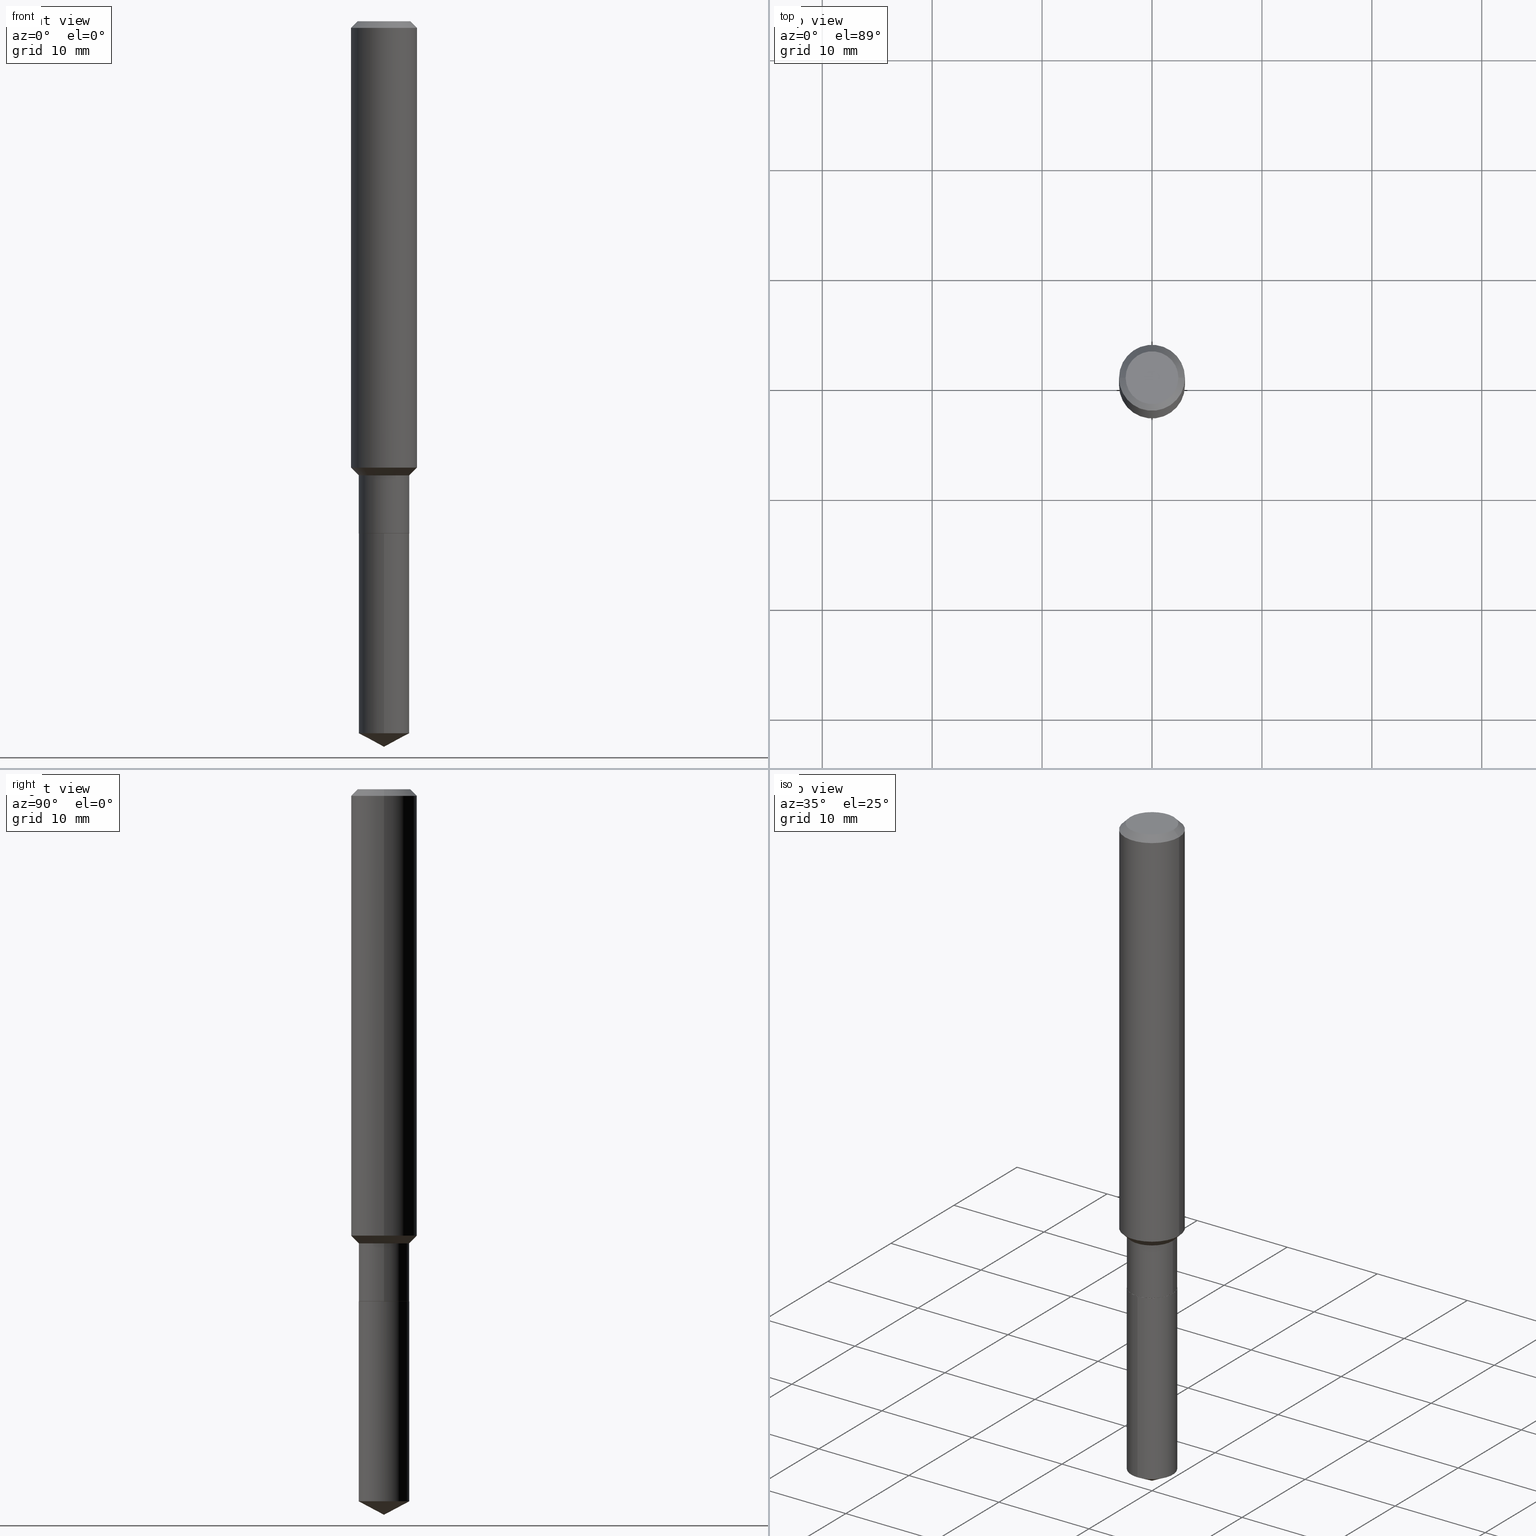
[diagram: canonical four-view strip — front | top / right | iso, engineering-drawing reading convention]
A machine part, canonical four-view strip (front | top / right | iso — engineering-drawing reading convention). The complete STEP part file that produces these views, byte-faithful:
ISO-10303-21;
HEADER;
FILE_DESCRIPTION (( 'STEP AP203' ),
    '1' );
FILE_NAME ('64616.STEP',
    '2024-04-24T18:26:18',
    ( '' ),
    ( '' ),
    'SwSTEP 2.0',
    'SolidWorks 2023',
    '' );
FILE_SCHEMA (( 'CONFIG_CONTROL_DESIGN' ));
ENDSEC;

DATA;
#1 = DIRECTION ( 'NONE',  ( 1.000000000000000000, -6.982962677686267499E-15, 0.000000000000000000 ) ) ;
#2 = DIRECTION ( 'NONE',  ( -2.445542674016749564E-29, 3.491375555903980124E-15, 1.000000000000000000 ) ) ;
#3 = AXIS2_PLACEMENT_3D ( 'NONE', #449, #405, #113 ) ;
#4 = ORIENTED_EDGE ( 'NONE', *, *, #258, .T. ) ;
#5 = AXIS2_PLACEMENT_3D ( 'NONE', #338, #2, #154 ) ;
#6 = LINE ( 'NONE', #160, #416 ) ;
#7 = DIRECTION ( 'NONE',  ( 1.000000000000000000, -6.982962677686267499E-15, 0.000000000000000000 ) ) ;
#8 = DIRECTION ( 'NONE',  ( -6.982962677686266711E-15, -1.000000000000000000, 6.033899489043098888E-15 ) ) ;
#9 = ORIENTED_EDGE ( 'NONE', *, *, #47, .T. ) ;
#10 = ADVANCED_FACE ( 'NONE', ( #106 ), #294, .F. ) ;
#11 = APPROVAL_ROLE ( '' ) ;
#12 = CARTESIAN_POINT ( 'NONE',  ( 4.486457071827251481E-29, -6.405471664241634119E-15, -1.834599999999999786 ) ) ;
#13 = LINE ( 'NONE', #158, #85 ) ;
#14 = AXIS2_PLACEMENT_3D ( 'NONE', #217, #163, #118 ) ;
#15 = CARTESIAN_POINT ( 'NONE',  ( 5.776197320209327532E-31, -8.246878922347559293E-17, -0.02362000000000014088 ) ) ;
#16 = LINE ( 'NONE', #91, #67 ) ;
#17 = EDGE_CURVE ( 'NONE', #442, #349, #34, .T. ) ;
#18 = LINE ( 'NONE', #313, #117 ) ;
#19 = ORIENTED_EDGE ( 'NONE', *, *, #123, .F. ) ;
#20 = ADVANCED_FACE ( 'NONE', ( #259 ), #66, .T. ) ;
#21 = CIRCLE ( 'NONE', #84, 0.09005000000000000504 ) ;
#22 = EDGE_CURVE ( 'NONE', #370, #127, #149, .T. ) ;
#23 = FACE_OUTER_BOUND ( 'NONE', #193, .T. ) ;
#24 = AXIS2_PLACEMENT_3D ( 'NONE', #105, #196, #8 ) ;
#25 = DIRECTION ( 'NONE',  ( -6.982962677686266711E-15, -1.000000000000000000, 3.016949744521549444E-15 ) ) ;
#26 = PRODUCT_RELATED_PRODUCT_CATEGORY ( 'detail', '', ( #171 ) ) ;
#27 = CLOSED_SHELL ( 'NONE', ( #462, #222, #275, #199, #151, #322, #20, #112, #237, #417, #137, #356 ) ) ;
#28 = ORIENTED_EDGE ( 'NONE', *, *, #304, .T. ) ;
#29 = DIRECTION ( 'NONE',  ( 1.000000000000000000, -6.982962677686267499E-15, 4.875432709231658792E-29 ) ) ;
#30 = DIRECTION ( 'NONE',  ( 2.445542674016748723E-29, -3.491375555903980518E-15, -1.000000000000000000 ) ) ;
#31 = PERSON_AND_ORGANIZATION ( #232, #253 ) ;
#32 = DIRECTION ( 'NONE',  ( -2.445468806185136877E-29, 3.491481338843145188E-15, 1.000000000000000000 ) ) ;
#33 = ORIENTED_EDGE ( 'NONE', *, *, #17, .F. ) ;
#34 = LINE ( 'NONE', #188, #76 ) ;
#35 = APPROVAL_PERSON_ORGANIZATION ( #185, #190, #83 ) ;
#36 = ORIENTED_EDGE ( 'NONE', *, *, #247, .F. ) ;
#37 = CARTESIAN_POINT ( 'NONE',  ( 3.977065919498887245E-29, -5.678196101360606544E-15, -1.626299999999999857 ) ) ;
#38 = PERSON_AND_ORGANIZATION_ROLE ( 'creator' ) ;
#39 = VERTEX_POINT ( 'NONE', #143 ) ;
#40 = FACE_OUTER_BOUND ( 'NONE', #191, .T. ) ;
#41 = EDGE_LOOP ( 'NONE', ( #173, #444, #307, #214 ) ) ;
#42 = AXIS2_PLACEMENT_3D ( 'NONE', #323, #30, #429 ) ;
#43 = AXIS2_PLACEMENT_3D ( 'NONE', #365, #490, #29 ) ;
#44 = ORIENTED_EDGE ( 'NONE', *, *, #162, .T. ) ;
#45 = DIRECTION ( 'NONE',  ( -2.445468806185136597E-29, 3.491481338843145583E-15, 1.000000000000000000 ) ) ;
#46 = COORDINATED_UNIVERSAL_TIME_OFFSET ( 5, 0, .BEHIND. ) ;
#47 = EDGE_CURVE ( 'NONE', #231, #72, #441, .T. ) ;
#48 =( LENGTH_UNIT ( ) NAMED_UNIT ( * ) SI_UNIT ( $, .METRE. ) );
#49 = CARTESIAN_POINT ( 'NONE',  ( -0.1180999999999999966, -1.993086318916797028E-15, -0.02362000000000014088 ) ) ;
#50 = CARTESIAN_POINT ( 'NONE',  ( 4.486457071827251481E-29, -6.405471664241634119E-15, -1.834599999999999786 ) ) ;
#51 = APPROVAL ( #341, 'UNSPECIFIED' ) ;
#52 = PERSON_AND_ORGANIZATION ( #232, #253 ) ;
#53 = ORIENTED_EDGE ( 'NONE', *, *, #22, .F. ) ;
#54 = CIRCLE ( 'NONE', #150, 0.09447999999999998066 ) ;
#55 = COORDINATED_UNIVERSAL_TIME_OFFSET ( 5, 0, .BEHIND. ) ;
#56 = DIRECTION ( 'NONE',  ( -2.445542674016749564E-29, 3.491375555903980124E-15, 1.000000000000000000 ) ) ;
#57 = CYLINDRICAL_SURFACE ( 'NONE', #75, 0.09055000000000000548 ) ;
#58 = EDGE_LOOP ( 'NONE', ( #186, #372, #245, #77 ) ) ;
#59 = AXIS2_PLACEMENT_3D ( 'NONE', #478, #353, #315 ) ;
#60 = CARTESIAN_POINT ( 'NONE',  ( 6.603013411620882309E-46, -9.427353171913646324E-32, -2.700101262760083747E-17 ) ) ;
#61 = APPROVAL_DATE_TIME ( #426, #119 ) ;
#62 = EDGE_LOOP ( 'NONE', ( #124, #423, #155, #33 ) ) ;
#63 = LINE ( 'NONE', #99, #152 ) ;
#64 = CARTESIAN_POINT ( 'NONE',  ( 4.486457071827251481E-29, -6.405471664241634119E-15, -1.834599999999999786 ) ) ;
#65 = PRODUCT_DEFINITION_SHAPE ( 'NONE', 'NONE',  #229 ) ;
#66 = CONICAL_SURFACE ( 'NONE', #219, 0.09054999999999999161, 0.7853981633974501664 ) ;
#67 = VECTOR ( 'NONE', #170, 39.37007874015748143 ) ;
#68 = DIRECTION ( 'NONE',  ( -2.445542674016749564E-29, 3.491375555903980124E-15, 1.000000000000000000 ) ) ;
#69 = DIRECTION ( 'NONE',  ( -2.445542674016749564E-29, 3.491375555903980518E-15, 1.000000000000000000 ) ) ;
#70 = DIRECTION ( 'NONE',  ( 1.000000000000000000, -6.982962677686269077E-15, 0.000000000000000000 ) ) ;
#71 = CARTESIAN_POINT ( 'NONE',  ( 0.000000000000000000, 0.000000000000000000, 0.000000000000000000 ) ) ;
#72 = VERTEX_POINT ( 'NONE', #428 ) ;
#73 = VECTOR ( 'NONE', #69, 39.37007874015748143 ) ;
#74 = CARTESIAN_POINT ( 'NONE',  ( 6.354500460829572678E-29, -9.071990244460901999E-15, -2.598399999999999821 ) ) ;
#75 = AXIS2_PLACEMENT_3D ( 'NONE', #317, #284, #296 ) ;
#76 = VECTOR ( 'NONE', #227, 39.37007874015748143 ) ;
#77 = ORIENTED_EDGE ( 'NONE', *, *, #486, .F. ) ;
#78 = ORIENTED_EDGE ( 'NONE', *, *, #116, .T. ) ;
#79 = DIRECTION ( 'NONE',  ( -2.445542674016749564E-29, 3.491375555903980124E-15, 1.000000000000000000 ) ) ;
#80 = VERTEX_POINT ( 'NONE', #324 ) ;
#81 = EDGE_CURVE ( 'NONE', #127, #122, #145, .T. ) ;
#82 = DIRECTION ( 'NONE',  ( -2.445468806185136597E-29, 3.491481338843145583E-15, 1.000000000000000000 ) ) ;
#83 = APPROVAL_ROLE ( '' ) ;
#84 = AXIS2_PLACEMENT_3D ( 'NONE', #50, #45, #148 ) ;
#85 = VECTOR ( 'NONE', #309, 39.37007874015748143 ) ;
#86 = ORIENTED_EDGE ( 'NONE', *, *, #440, .T. ) ;
#87 = DIRECTION ( 'NONE',  ( 1.000000000000000000, -6.982962677686271444E-15, 0.000000000000000000 ) ) ;
#88 = CARTESIAN_POINT ( 'NONE',  ( 3.977065919498887245E-29, -5.678196101360606544E-15, -1.626299999999999857 ) ) ;
#89 = EDGE_LOOP ( 'NONE', ( #241, #303, #78, #269 ) ) ;
#90 = SHAPE_DEFINITION_REPRESENTATION ( #65, #391 ) ;
#91 = CARTESIAN_POINT ( 'NONE',  ( 0.09005000000000000504, -7.034287453367283370E-15, -1.834599999999999786 ) ) ;
#92 = DIRECTION ( 'NONE',  ( -2.445468806185136597E-29, 3.491481338843145583E-15, 1.000000000000000000 ) ) ;
#93 = ORIENTED_EDGE ( 'NONE', *, *, #109, .T. ) ;
#94 = PERSON_AND_ORGANIZATION ( #232, #253 ) ;
#95 = ORIENTED_EDGE ( 'NONE', *, *, #226, .T. ) ;
#96 = CIRCLE ( 'NONE', #43, 0.09447999999999998066 ) ;
#97 = AXIS2_PLACEMENT_3D ( 'NONE', #355, #396, #487 ) ;
#98 = DIRECTION ( 'NONE',  ( 1.000000000000000000, -6.982962677686266711E-15, 0.000000000000000000 ) ) ;
#99 = CARTESIAN_POINT ( 'NONE',  ( 0.09054999999999999161, -6.310503371825098014E-15, -1.626299999999999857 ) ) ;
#100 = ADVANCED_FACE ( 'NONE', ( #23 ), #225, .T. ) ;
#101 = CYLINDRICAL_SURFACE ( 'NONE', #425, 0.1181000000000001077 ) ;
#102 = EDGE_CURVE ( 'NONE', #263, #270, #320, .T. ) ;
#103 = AXIS2_PLACEMENT_3D ( 'NONE', #242, #79, #404 ) ;
#104 = DIRECTION ( 'NONE',  ( -2.445468806185136597E-29, 3.491481338843145583E-15, 1.000000000000000000 ) ) ;
#105 = CARTESIAN_POINT ( 'NONE',  ( 6.236618761805847335E-29, -8.904087537190013897E-15, -2.550253710963053422 ) ) ;
#106 = FACE_OUTER_BOUND ( 'NONE', #466, .T. ) ;
#107 = DIRECTION ( 'NONE',  ( 1.000000000000000000, -6.982962677686269077E-15, 0.000000000000000000 ) ) ;
#108 = ORIENTED_EDGE ( 'NONE', *, *, #176, .T. ) ;
#109 = EDGE_CURVE ( 'NONE', #349, #270, #194, .T. ) ;
#110 = ORIENTED_EDGE ( 'NONE', *, *, #486, .T. ) ;
#111 = CARTESIAN_POINT ( 'NONE',  ( 4.486457071827251481E-29, -6.405471664241634119E-15, -1.834599999999999786 ) ) ;
#112 = ADVANCED_FACE ( 'NONE', ( #255 ), #101, .T. ) ;
#113 = DIRECTION ( 'NONE',  ( 1.000000000000000000, -6.982962677686266711E-15, 0.000000000000000000 ) ) ;
#114 = ORIENTED_EDGE ( 'NONE', *, *, #304, .F. ) ;
#115 = DIRECTION ( 'NONE',  ( -2.445468806185136597E-29, 3.491481338843145583E-15, 1.000000000000000000 ) ) ;
#116 = EDGE_CURVE ( 'NONE', #401, #263, #63, .T. ) ;
#117 = VECTOR ( 'NONE', #422, 39.37007874015748143 ) ;
#118 = DIRECTION ( 'NONE',  ( 1.000000000000000000, -6.982962677686267499E-15, 0.000000000000000000 ) ) ;
#119 = APPROVAL ( #339, 'UNSPECIFIED' ) ;
#120 = VERTEX_POINT ( 'NONE', #290 ) ;
#121 = DATE_TIME_ROLE ( 'creation_date' ) ;
#122 = VERTEX_POINT ( 'NONE', #481 ) ;
#123 = EDGE_CURVE ( 'NONE', #120, #72, #347, .T. ) ;
#124 = ORIENTED_EDGE ( 'NONE', *, *, #327, .F. ) ;
#125 = APPROVAL_STATUS ( 'not_yet_approved' ) ;
#126 = DIRECTION ( 'NONE',  ( -6.165590087286847862E-15, -0.8829475928589283207, 0.4694715627858883078 ) ) ;
#127 = VERTEX_POINT ( 'NONE', #138 ) ;
#128 = CC_DESIGN_PERSON_AND_ORGANIZATION_ASSIGNMENT ( #135, #433, ( #142 ) ) ;
#129 = AXIS2_PLACEMENT_3D ( 'NONE', #479, #177, #98 ) ;
#130 = DIRECTION ( 'NONE',  ( -1.000000000000000000, 6.982962677686266711E-15, 0.000000000000000000 ) ) ;
#131 = AXIS2_PLACEMENT_3D ( 'NONE', #351, #172, #358 ) ;
#132 = VECTOR ( 'NONE', #412, 39.37007874015748143 ) ;
#133 = AXIS2_PLACEMENT_3D ( 'NONE', #361, #183, #359 ) ;
#134 = ORIENTED_EDGE ( 'NONE', *, *, #102, .T. ) ;
#135 = PERSON_AND_ORGANIZATION ( #232, #253 ) ;
#136 = DIRECTION ( 'NONE',  ( -2.445468806185136597E-29, 3.491481338843145583E-15, 1.000000000000000000 ) ) ;
#137 = ADVANCED_FACE ( 'NONE', ( #390 ), #180, .F. ) ;
#138 = CARTESIAN_POINT ( 'NONE',  ( -6.323072704644292482E-16, -0.09055000000000891502, -2.550253710963052978 ) ) ;
#139 = PERSON_AND_ORGANIZATION_ROLE ( 'design_owner' ) ;
#140 = EDGE_CURVE ( 'NONE', #406, #122, #291, .T. ) ;
#141 = AXIS2_PLACEMENT_3D ( 'NONE', #88, #335, #7 ) ;
#142 = SECURITY_CLASSIFICATION ( '', '', #470 ) ;
#143 = CARTESIAN_POINT ( 'NONE',  ( 0.09447999999999998066, -7.704367267948738690E-16, -2.700101262759583929E-17 ) ) ;
#144 = ORIENTED_EDGE ( 'NONE', *, *, #247, .T. ) ;
#145 = LINE ( 'NONE', #256, #73 ) ;
#146 = ORIENTED_EDGE ( 'NONE', *, *, #17, .T. ) ;
#147 = CYLINDRICAL_SURFACE ( 'NONE', #310, 0.09055000000000000548 ) ;
#148 = DIRECTION ( 'NONE',  ( 1.000000000000000000, -6.982962677686271444E-15, 0.000000000000000000 ) ) ;
#149 = CIRCLE ( 'NONE', #97, 0.09055000000000000548 ) ;
#150 = AXIS2_PLACEMENT_3D ( 'NONE', #60, #464, #174 ) ;
#151 = ADVANCED_FACE ( 'NONE', ( #398 ), #223, .T. ) ;
#152 = VECTOR ( 'NONE', #319, 39.37007874015748143 ) ;
#153 = ORIENTED_EDGE ( 'NONE', *, *, #22, .T. ) ;
#154 = DIRECTION ( 'NONE',  ( -6.982962677686265133E-15, -1.000000000000000000, 3.541896320645524581E-15 ) ) ;
#155 = ORIENTED_EDGE ( 'NONE', *, *, #384, .T. ) ;
#156 = LINE ( 'NONE', #74, #373 ) ;
#157 = CALENDAR_DATE ( 2024, 24, 4 ) ;
#158 = CARTESIAN_POINT ( 'NONE',  ( 6.433964472308155251E-16, 0.09054999999999360782, -1.834600000000000231 ) ) ;
#159 = LOCAL_TIME ( 14, 26, 18.00000000000000000, #376 ) ;
#160 = CARTESIAN_POINT ( 'NONE',  ( -0.1181000000000001077, 8.391509709326790846E-16, -5.809262341591049389E-30 ) ) ;
#161 = DATE_AND_TIME ( #208, #278 ) ;
#162 = EDGE_CURVE ( 'NONE', #80, #231, #21, .T. ) ;
#163 = DIRECTION ( 'NONE',  ( -2.445468806185136597E-29, 3.491481338843145583E-15, 1.000000000000000000 ) ) ;
#164 = CARTESIAN_POINT ( 'NONE',  ( 0.1181000000000001909, -6.406693682710227199E-15, -1.598749999999999671 ) ) ;
#165 = PLANE ( 'NONE',  #292 ) ;
#166 = ORIENTED_EDGE ( 'NONE', *, *, #327, .T. ) ;
#167 = AXIS2_PLACEMENT_3D ( 'NONE', #12, #92, #279 ) ;
#168 = AXIS2_PLACEMENT_3D ( 'NONE', #64, #218, #264 ) ;
#169 = CONICAL_SURFACE ( 'NONE', #348, 0.09005000000000000504, 0.7853981633975507526 ) ;
#170 = DIRECTION ( 'NONE',  ( 0.7071067811866199593, -2.468850131083015945E-15, 0.7071067811864750752 ) ) ;
#171 = PRODUCT ( '64616', '64616', '', ( #289 ) ) ;
#172 = DIRECTION ( 'NONE',  ( -2.445468806185136597E-29, 3.491481338843145583E-15, 1.000000000000000000 ) ) ;
#173 = ORIENTED_EDGE ( 'NONE', *, *, #371, .T. ) ;
#174 = DIRECTION ( 'NONE',  ( 1.000000000000000000, -6.982962677686267499E-15, 4.875432709231658792E-29 ) ) ;
#175 = DIMENSIONAL_EXPONENTS ( 1.000000000000000000, 0.000000000000000000, 0.000000000000000000, 0.000000000000000000, 0.000000000000000000, 0.000000000000000000, 0.000000000000000000 ) ;
#176 = EDGE_CURVE ( 'NONE', #235, #370, #156, .T. ) ;
#177 = DIRECTION ( 'NONE',  ( -2.445468806185136597E-29, 3.491481338843145583E-15, 1.000000000000000000 ) ) ;
#178 = CIRCLE ( 'NONE', #244, 0.1181000000000001909 ) ;
#179 = CC_DESIGN_SECURITY_CLASSIFICATION ( #142, ( #438 ) ) ;
#180 = PLANE ( 'NONE',  #168 ) ;
#181 = APPLICATION_PROTOCOL_DEFINITION ( 'international standard', 'config_control_design', 1994, #439 ) ;
#182 = CYLINDRICAL_SURFACE ( 'NONE', #59, 0.1181000000000001077 ) ;
#183 = DIRECTION ( 'NONE',  ( -2.445542674016749564E-29, 3.491375555903980124E-15, 1.000000000000000000 ) ) ;
#184 = DIRECTION ( 'NONE',  ( -2.445468806185136597E-29, 3.491481338843145583E-15, 1.000000000000000000 ) ) ;
#185 = PERSON_AND_ORGANIZATION ( #232, #253 ) ;
#186 = ORIENTED_EDGE ( 'NONE', *, *, #123, .T. ) ;
#187 = APPROVAL_PERSON_ORGANIZATION ( #201, #119, #11 ) ;
#188 = CARTESIAN_POINT ( 'NONE',  ( -0.1180999999999999966, 7.422191030112725094E-16, -0.02362000000000014088 ) ) ;
#189 = ORIENTED_EDGE ( 'NONE', *, *, #192, .T. ) ;
#190 = APPROVAL ( #125, 'UNSPECIFIED' ) ;
#191 = EDGE_LOOP ( 'NONE', ( #297, #114, #146, #93 ) ) ;
#192 = EDGE_CURVE ( 'NONE', #401, #458, #252, .T. ) ;
#193 = EDGE_LOOP ( 'NONE', ( #447, #153, #228, #311 ) ) ;
#194 = CIRCLE ( 'NONE', #129, 0.1180999999999999966 ) ;
#195 = AXIS2_PLACEMENT_3D ( 'NONE', #299, #82, #107 ) ;
#196 = DIRECTION ( 'NONE',  ( -2.445542674016749564E-29, 3.491375555903980124E-15, 1.000000000000000000 ) ) ;
#197 = CC_DESIGN_APPROVAL ( #51, ( #142 ) ) ;
#198 =( CONVERSION_BASED_UNIT ( 'INCH', #272 ) LENGTH_UNIT ( ) NAMED_UNIT ( #175 ) );
#199 = ADVANCED_FACE ( 'NONE', ( #453 ), #387, .T. ) ;
#200 = ORIENTED_EDGE ( 'NONE', *, *, #273, .F. ) ;
#201 = PERSON_AND_ORGANIZATION ( #232, #253 ) ;
#202 = CARTESIAN_POINT ( 'NONE',  ( 5.776197320209327532E-31, -8.246878922347559293E-17, -0.02362000000000014088 ) ) ;
#203 =( NAMED_UNIT ( * ) SI_UNIT ( $, .STERADIAN. ) SOLID_ANGLE_UNIT ( ) );
#204 = CARTESIAN_POINT ( 'NONE',  ( 3.301506705810441154E-46, -4.713676585956823162E-32, -1.350050631380041873E-17 ) ) ;
#205 = CONICAL_SURFACE ( 'NONE', #482, 74.04434902938429275, 1.082104136236490710 ) ;
#206 = EDGE_LOOP ( 'NONE', ( #189, #367, #281, #314 ) ) ;
#207 = DATE_AND_TIME ( #380, #484 ) ;
#208 = CALENDAR_DATE ( 2024, 24, 4 ) ;
#209 = DIRECTION ( 'NONE',  ( -6.982962677686265133E-15, -1.000000000000000000, 3.541896320645524581E-15 ) ) ;
#210 = LINE ( 'NONE', #251, #343 ) ;
#211 = PERSON_AND_ORGANIZATION ( #232, #253 ) ;
#212 = CIRCLE ( 'NONE', #195, 0.1181000000000001909 ) ;
#213 = CC_DESIGN_APPROVAL ( #119, ( #438 ) ) ;
#214 = ORIENTED_EDGE ( 'NONE', *, *, #81, .F. ) ;
#215 = EDGE_CURVE ( 'NONE', #122, #406, #400, .T. ) ;
#216 = CARTESIAN_POINT ( 'NONE',  ( -0.09005000000000000504, -5.765627930689664162E-15, -1.834599999999999786 ) ) ;
#217 = CARTESIAN_POINT ( 'NONE',  ( 3.977065919498887245E-29, -5.678196101360606544E-15, -1.626299999999999857 ) ) ;
#218 = DIRECTION ( 'NONE',  ( -2.438088387897960049E-29, 3.491481338843145188E-15, 1.000000000000000000 ) ) ;
#219 = AXIS2_PLACEMENT_3D ( 'NONE', #475, #136, #363 ) ;
#220 = CIRCLE ( 'NONE', #267, 0.09055000000000000548 ) ;
#221 = APPROVAL_PERSON_ORGANIZATION ( #52, #51, #418 ) ;
#222 = ADVANCED_FACE ( 'NONE', ( #411 ), #395, .T. ) ;
#223 = CYLINDRICAL_SURFACE ( 'NONE', #446, 0.09055000000000000548 ) ;
#224 = CARTESIAN_POINT ( 'NONE',  ( 3.909693253888486103E-29, -5.582005790475478148E-15, -1.598749999999999671 ) ) ;
#225 = CYLINDRICAL_SURFACE ( 'NONE', #133, 0.09055000000000000548 ) ;
#226 = EDGE_CURVE ( 'NONE', #263, #409, #212, .T. ) ;
#227 = DIRECTION ( 'NONE',  ( -0.7071067811865460184, 2.468850131082241283E-15, -0.7071067811865490160 ) ) ;
#228 = ORIENTED_EDGE ( 'NONE', *, *, #81, .T. ) ;
#229 = PRODUCT_DEFINITION ( 'UNKNOWN', '', #438, #375 ) ;
#230 = VECTOR ( 'NONE', #126, 39.37007874015748854 ) ;
#231 = VERTEX_POINT ( 'NONE', #233 ) ;
#232 = PERSON ( 'UNSPECIFIED', 'UNSPECIFIED', 'UNSPECIFIED', ('UNSPECIFIED'), ('UNSPECIFIED'), ('UNSPECIFIED') ) ;
#233 = CARTESIAN_POINT ( 'NONE',  ( -0.09005000000000000504, -5.762978703515552960E-15, -1.834599999999999786 ) ) ;
#234 = APPROVAL_DATE_TIME ( #488, #190 ) ;
#235 = VERTEX_POINT ( 'NONE', #369 ) ;
#236 = DIRECTION ( 'NONE',  ( 6.273719981627778698E-15, 0.8829475928589315403, 0.4694715627858820350 ) ) ;
#237 = ADVANCED_FACE ( 'NONE', ( #40 ), #471, .T. ) ;
#238 = ORIENTED_EDGE ( 'NONE', *, *, #109, .F. ) ;
#239 = CIRCLE ( 'NONE', #24, 0.09055000000000000548 ) ;
#240 =( GEOMETRIC_REPRESENTATION_CONTEXT ( 3 ) GLOBAL_UNCERTAINTY_ASSIGNED_CONTEXT ( ( #271 ) ) GLOBAL_UNIT_ASSIGNED_CONTEXT ( ( #198, #377, #203 ) ) REPRESENTATION_CONTEXT ( 'NONE', 'WORKASPACE' ) );
#241 = ORIENTED_EDGE ( 'NONE', *, *, #410, .F. ) ;
#242 = CARTESIAN_POINT ( 'NONE',  ( 4.486457071827251481E-29, -6.405471664241634119E-15, -1.834599999999999786 ) ) ;
#243 = CC_DESIGN_PERSON_AND_ORGANIZATION_ASSIGNMENT ( #366, #38, ( #229 ) ) ;
#244 = AXIS2_PLACEMENT_3D ( 'NONE', #224, #360, #70 ) ;
#245 = ORIENTED_EDGE ( 'NONE', *, *, #192, .F. ) ;
#246 = CONICAL_SURFACE ( 'NONE', #5, 74.04434902938429275, 1.082104136236490710 ) ;
#247 = EDGE_CURVE ( 'NONE', #235, #127, #378, .T. ) ;
#248 = DIRECTION ( 'NONE',  ( -0.7071067811865487940, 7.493145998870358893E-15, 0.7071067811865462405 ) ) ;
#249 = CARTESIAN_POINT ( 'NONE',  ( -8.992684507221348034E-28, 1.283835462335597112E-13, 36.77167874015748339 ) ) ;
#250 = EDGE_LOOP ( 'NONE', ( #36, #108, #274 ) ) ;
#251 = CARTESIAN_POINT ( 'NONE',  ( 0.1180999999999999966, -8.926936027602933910E-16, -0.02362000000000014088 ) ) ;
#252 = CIRCLE ( 'NONE', #141, 0.09054999999999999161 ) ;
#253 = ORGANIZATION ( 'UNSPECIFIED', 'UNSPECIFIED', '' ) ;
#254 = PERSON_AND_ORGANIZATION_ROLE ( 'design_supplier' ) ;
#255 = FACE_OUTER_BOUND ( 'NONE', #413, .T. ) ;
#256 = CARTESIAN_POINT ( 'NONE',  ( -6.323072704644466031E-16, -0.09055000000000641702, -1.834599999999999564 ) ) ;
#257 = CARTESIAN_POINT ( 'NONE',  ( 0.000000000000000000, 0.000000000000000000, 0.000000000000000000 ) ) ;
#258 = EDGE_CURVE ( 'NONE', #231, #80, #436, .T. ) ;
#259 = FACE_OUTER_BOUND ( 'NONE', #89, .T. ) ;
#260 = AXIS2_PLACEMENT_3D ( 'NONE', #357, #68, #25 ) ;
#261 = DIRECTION ( 'NONE',  ( -2.445468806185136597E-29, 3.491481338843145583E-15, 1.000000000000000000 ) ) ;
#262 = ADVANCED_FACE ( 'NONE', ( #463 ), #205, .T. ) ;
#263 = VERTEX_POINT ( 'NONE', #164 ) ;
#264 = DIRECTION ( 'NONE',  ( 1.000000000000000000, -6.982962677686265922E-15, 4.876176775795935793E-29 ) ) ;
#265 = DIRECTION ( 'NONE',  ( -1.000000000000000000, 6.982962677686266711E-15, 0.000000000000000000 ) ) ;
#266 = EDGE_LOOP ( 'NONE', ( #95, #86, #344, #419 ) ) ;
#267 = AXIS2_PLACEMENT_3D ( 'NONE', #403, #261, #368 ) ;
#268 = EDGE_LOOP ( 'NONE', ( #44, #9, #19, #424 ) ) ;
#269 = ORIENTED_EDGE ( 'NONE', *, *, #362, .F. ) ;
#270 = VERTEX_POINT ( 'NONE', #345 ) ;
#271 = UNCERTAINTY_MEASURE_WITH_UNIT (LENGTH_MEASURE( 1.000000000000000082E-05 ), #198, 'distance_accuracy_value', 'NONE');
#272 = LENGTH_MEASURE_WITH_UNIT ( LENGTH_MEASURE( 0.02539999999999999897 ), #48 );
#273 = EDGE_CURVE ( 'NONE', #72, #458, #18, .T. ) ;
#274 = ORIENTED_EDGE ( 'NONE', *, *, #371, .F. ) ;
#275 = ADVANCED_FACE ( 'NONE', ( #448 ), #182, .T. ) ;
#276 = DATE_TIME_ROLE ( 'classification_date' ) ;
#277 = EDGE_LOOP ( 'NONE', ( #337, #144, #53 ) ) ;
#278 = LOCAL_TIME ( 14, 26, 18.00000000000000000, #383 ) ;
#279 = DIRECTION ( 'NONE',  ( 1.000000000000000000, -6.982962677686271444E-15, 0.000000000000000000 ) ) ;
#280 = ORIENTED_EDGE ( 'NONE', *, *, #47, .F. ) ;
#281 = ORIENTED_EDGE ( 'NONE', *, *, #226, .F. ) ;
#282 = AXIS2_PLACEMENT_3D ( 'NONE', #394, #473, #285 ) ;
#283 = CLOSED_SHELL ( 'NONE', ( #305, #402, #262, #100, #10 ) ) ;
#284 = DIRECTION ( 'NONE',  ( -2.445542674016749564E-29, 3.491375555903980124E-15, 1.000000000000000000 ) ) ;
#285 = DIRECTION ( 'NONE',  ( 1.000000000000000000, -6.982962677686266711E-15, 0.000000000000000000 ) ) ;
#286 = CC_DESIGN_PERSON_AND_ORGANIZATION_ASSIGNMENT ( #94, #474, ( #438 ) ) ;
#287 = COORDINATED_UNIVERSAL_TIME_OFFSET ( 5, 0, .BEHIND. ) ;
#288 = CARTESIAN_POINT ( 'NONE',  ( 0.1181000000000001077, -8.246878922347488542E-16, 5.758764772215005345E-30 ) ) ;
#289 = MECHANICAL_CONTEXT ( 'NONE', #439, 'mechanical' ) ;
#290 = CARTESIAN_POINT ( 'NONE',  ( 0.09055000000000000548, -7.036033194036704874E-15, -1.834100000000000064 ) ) ;
#291 = CIRCLE ( 'NONE', #260, 0.09055000000000000548 ) ;
#292 = AXIS2_PLACEMENT_3D ( 'NONE', #204, #459, #308 ) ;
#293 = CC_DESIGN_DATE_AND_TIME_ASSIGNMENT ( #161, #121, ( #229 ) ) ;
#294 = PLANE ( 'NONE',  #42 ) ;
#295 = ORIENTED_EDGE ( 'NONE', *, *, #440, .F. ) ;
#296 = DIRECTION ( 'NONE',  ( -6.982962677686266711E-15, -1.000000000000000000, 3.016949744521549444E-15 ) ) ;
#297 = ORIENTED_EDGE ( 'NONE', *, *, #354, .F. ) ;
#298 = DIRECTION ( 'NONE',  ( -2.445468806185136597E-29, 3.491481338843145583E-15, 1.000000000000000000 ) ) ;
#299 = CARTESIAN_POINT ( 'NONE',  ( 3.909693253888486103E-29, -5.582005790475478148E-15, -1.598749999999999671 ) ) ;
#300 = ORIENTED_EDGE ( 'NONE', *, *, #336, .T. ) ;
#301 = CIRCLE ( 'NONE', #3, 0.1180999999999999966 ) ;
#302 = VECTOR ( 'NONE', #32, 39.37007874015748143 ) ;
#303 = ORIENTED_EDGE ( 'NONE', *, *, #350, .T. ) ;
#304 = EDGE_CURVE ( 'NONE', #442, #39, #54, .T. ) ;
#305 = ADVANCED_FACE ( 'NONE', ( #318 ), #57, .T. ) ;
#306 = CARTESIAN_POINT ( 'NONE',  ( -0.09054999999999999161, -5.397564565235639118E-15, -1.626299999999999857 ) ) ;
#307 = ORIENTED_EDGE ( 'NONE', *, *, #215, .F. ) ;
#308 = DIRECTION ( 'NONE',  ( -1.000000000000000000, 6.982962677686265922E-15, -4.876176775795935793E-29 ) ) ;
#309 = DIRECTION ( 'NONE',  ( -2.445542674016749564E-29, 3.491375555903980518E-15, 1.000000000000000000 ) ) ;
#310 = AXIS2_PLACEMENT_3D ( 'NONE', #257, #298, #331 ) ;
#311 = ORIENTED_EDGE ( 'NONE', *, *, #140, .F. ) ;
#312 = LINE ( 'NONE', #461, #388 ) ;
#313 = CARTESIAN_POINT ( 'NONE',  ( -0.09055000000000000548, 6.433964472307707573E-16, -4.454095724225817219E-30 ) ) ;
#314 = ORIENTED_EDGE ( 'NONE', *, *, #116, .F. ) ;
#315 = DIRECTION ( 'NONE',  ( 1.000000000000000000, -6.982962677686266711E-15, 4.876176775795935793E-29 ) ) ;
#316 = ORIENTED_EDGE ( 'NONE', *, *, #215, .T. ) ;
#317 = CARTESIAN_POINT ( 'NONE',  ( 4.486457071827251481E-29, -6.405471664241634119E-15, -1.834599999999999786 ) ) ;
#318 = FACE_OUTER_BOUND ( 'NONE', #41, .T. ) ;
#319 = DIRECTION ( 'NONE',  ( 0.7071067811865487940, -2.468850131082270471E-15, 0.7071067811865462405 ) ) ;
#320 = LINE ( 'NONE', #288, #302 ) ;
#321 = DIRECTION ( 'NONE',  ( 1.000000000000000000, 0.000000000000000000, 0.000000000000000000 ) ) ;
#322 = ADVANCED_FACE ( 'NONE', ( #443 ), #147, .T. ) ;
#323 = CARTESIAN_POINT ( 'NONE',  ( 4.486457071827251481E-29, -6.405471664241634119E-15, -1.834599999999999786 ) ) ;
#324 = CARTESIAN_POINT ( 'NONE',  ( 0.09005000000000000504, -7.034287453367283370E-15, -1.834599999999999786 ) ) ;
#325 = AXIS2_PLACEMENT_3D ( 'NONE', #37, #115, #1 ) ;
#326 = ORIENTED_EDGE ( 'NONE', *, *, #407, .T. ) ;
#327 = EDGE_CURVE ( 'NONE', #39, #442, #96, .T. ) ;
#328 = DIRECTION ( 'NONE',  ( -0.7071067811866199593, 7.493145998870616062E-15, 0.7071067811864750752 ) ) ;
#329 = CARTESIAN_POINT ( 'NONE',  ( 0.09054999999999999161, -6.310503371825098014E-15, -1.626299999999999857 ) ) ;
#330 = ORIENTED_EDGE ( 'NONE', *, *, #258, .F. ) ;
#331 = DIRECTION ( 'NONE',  ( 1.000000000000000000, -6.982962677686266711E-15, 4.876176775795936353E-29 ) ) ;
#332 = FACE_OUTER_BOUND ( 'NONE', #250, .T. ) ;
#333 = EDGE_LOOP ( 'NONE', ( #364, #330 ) ) ;
#334 = VECTOR ( 'NONE', #328, 39.37007874015748143 ) ;
#335 = DIRECTION ( 'NONE',  ( -2.445468806185136597E-29, 3.491481338843145583E-15, 1.000000000000000000 ) ) ;
#336 = EDGE_CURVE ( 'NONE', #72, #120, #220, .T. ) ;
#337 = ORIENTED_EDGE ( 'NONE', *, *, #176, .F. ) ;
#338 = CARTESIAN_POINT ( 'NONE',  ( -8.992684507221348034E-28, 1.283835462335597112E-13, 36.77167874015748339 ) ) ;
#339 = APPROVAL_STATUS ( 'not_yet_approved' ) ;
#340 = MANIFOLD_SOLID_BREP ( 'Body-Move/Copy2[1]', #283 ) ;
#341 = APPROVAL_STATUS ( 'not_yet_approved' ) ;
#342 = DIRECTION ( 'NONE',  ( 2.445468806185136597E-29, -3.491481338843145583E-15, -1.000000000000000000 ) ) ;
#343 = VECTOR ( 'NONE', #386, 39.37007874015748143 ) ;
#344 = ORIENTED_EDGE ( 'NONE', *, *, #384, .F. ) ;
#345 = CARTESIAN_POINT ( 'NONE',  ( 0.1180999999999999966, -9.071566814582237199E-16, -0.02362000000000014088 ) ) ;
#346 = CARTESIAN_POINT ( 'NONE',  ( 6.433964472308331759E-16, 0.09054999999999360782, -1.834600000000000231 ) ) ;
#347 = CIRCLE ( 'NONE', #282, 0.09055000000000000548 ) ;
#348 = AXIS2_PLACEMENT_3D ( 'NONE', #111, #415, #87 ) ;
#349 = VERTEX_POINT ( 'NONE', #49 ) ;
#350 = EDGE_CURVE ( 'NONE', #458, #401, #381, .T. ) ;
#351 = CARTESIAN_POINT ( 'NONE',  ( 4.486457071827251481E-29, -6.405471664241634119E-15, -1.834599999999999786 ) ) ;
#352 = MANIFOLD_SOLID_BREP ( 'Body-Move/Copy2[2]', #27 ) ;
#353 = DIRECTION ( 'NONE',  ( -2.445468806185136597E-29, 3.491481338843145583E-15, 1.000000000000000000 ) ) ;
#354 = EDGE_CURVE ( 'NONE', #39, #270, #210, .T. ) ;
#355 = CARTESIAN_POINT ( 'NONE',  ( 6.236618761805847335E-29, -8.904087537190013897E-15, -2.550253710963053422 ) ) ;
#356 = ADVANCED_FACE ( 'NONE', ( #469 ), #435, .T. ) ;
#357 = CARTESIAN_POINT ( 'NONE',  ( 4.486457071827251481E-29, -6.405471664241634119E-15, -1.834599999999999786 ) ) ;
#358 = DIRECTION ( 'NONE',  ( 1.000000000000000000, -6.982962677686271444E-15, 0.000000000000000000 ) ) ;
#359 = DIRECTION ( 'NONE',  ( -6.982962677686266711E-15, -1.000000000000000000, 3.016949744521549444E-15 ) ) ;
#360 = DIRECTION ( 'NONE',  ( -2.445468806185136597E-29, 3.491481338843145583E-15, 1.000000000000000000 ) ) ;
#361 = CARTESIAN_POINT ( 'NONE',  ( 4.486457071827251481E-29, -6.405471664241634119E-15, -1.834599999999999786 ) ) ;
#362 = EDGE_CURVE ( 'NONE', #409, #263, #178, .T. ) ;
#363 = DIRECTION ( 'NONE',  ( 1.000000000000000000, -6.982962677686267499E-15, 0.000000000000000000 ) ) ;
#364 = ORIENTED_EDGE ( 'NONE', *, *, #162, .F. ) ;
#365 = CARTESIAN_POINT ( 'NONE',  ( 6.603013411620882309E-46, -9.427353171913646324E-32, -2.700101262760083747E-17 ) ) ;
#366 = PERSON_AND_ORGANIZATION ( #232, #253 ) ;
#367 = ORIENTED_EDGE ( 'NONE', *, *, #410, .T. ) ;
#368 = DIRECTION ( 'NONE',  ( 1.000000000000000000, -6.982962677686266711E-15, 0.000000000000000000 ) ) ;
#369 = CARTESIAN_POINT ( 'NONE',  ( 6.354498084165120295E-29, -9.071990244460901999E-15, -2.598399999999999821 ) ) ;
#370 = VERTEX_POINT ( 'NONE', #437 ) ;
#371 = EDGE_CURVE ( 'NONE', #127, #370, #239, .T. ) ;
#372 = ORIENTED_EDGE ( 'NONE', *, *, #273, .T. ) ;
#373 = VECTOR ( 'NONE', #236, 39.37007874015748854 ) ;
#374 = AXIS2_PLACEMENT_3D ( 'NONE', #392, #476, #321 ) ;
#375 = DESIGN_CONTEXT ( 'detailed design', #477, 'design' ) ;
#376 = COORDINATED_UNIVERSAL_TIME_OFFSET ( 5, 0, .BEHIND. ) ;
#377 =( NAMED_UNIT ( * ) PLANE_ANGLE_UNIT ( ) SI_UNIT ( $, .RADIAN. ) );
#378 = LINE ( 'NONE', #457, #230 ) ;
#379 = CARTESIAN_POINT ( 'NONE',  ( -0.09447999999999998066, 7.009847083995354710E-16, -2.700101262760559836E-17 ) ) ;
#380 = CALENDAR_DATE ( 2024, 24, 4 ) ;
#381 = CIRCLE ( 'NONE', #14, 0.09054999999999999161 ) ;
#382 = FACE_OUTER_BOUND ( 'NONE', #385, .T. ) ;
#383 = COORDINATED_UNIVERSAL_TIME_OFFSET ( 5, 0, .BEHIND. ) ;
#384 = EDGE_CURVE ( 'NONE', #270, #349, #301, .T. ) ;
#385 = EDGE_LOOP ( 'NONE', ( #28, #166 ) ) ;
#386 = DIRECTION ( 'NONE',  ( 0.7071067811865460184, -7.319954787623251312E-15, -0.7071067811865490160 ) ) ;
#387 = CONICAL_SURFACE ( 'NONE', #325, 0.09054999999999999161, 0.7853981633974501664 ) ;
#388 = VECTOR ( 'NONE', #248, 39.37007874015748143 ) ;
#389 = DIRECTION ( 'NONE',  ( 1.000000000000000000, -6.982962677686266711E-15, 4.876176775795935793E-29 ) ) ;
#390 = FACE_OUTER_BOUND ( 'NONE', #333, .T. ) ;
#391 = ADVANCED_BREP_SHAPE_REPRESENTATION ( '64616', ( #340, #352, #374 ), #240 ) ;
#392 = CARTESIAN_POINT ( 'NONE',  ( 0.000000000000000000, 0.000000000000000000, 0.000000000000000000 ) ) ;
#393 = DATE_AND_TIME ( #431, #472 ) ;
#394 = CARTESIAN_POINT ( 'NONE',  ( 4.485234337424158680E-29, -6.403725923572213404E-15, -1.834100000000000064 ) ) ;
#395 = CONICAL_SURFACE ( 'NONE', #414, 0.1180999999999999966, 0.7853981633974461696 ) ;
#396 = DIRECTION ( 'NONE',  ( -2.445542674016749564E-29, 3.491375555903980124E-15, 1.000000000000000000 ) ) ;
#397 = APPLICATION_PROTOCOL_DEFINITION ( 'international standard', 'config_control_design', 1994, #477 ) ;
#398 = FACE_OUTER_BOUND ( 'NONE', #58, .T. ) ;
#399 = EDGE_LOOP ( 'NONE', ( #200, #300, #110, #454 ) ) ;
#400 = CIRCLE ( 'NONE', #103, 0.09055000000000000548 ) ;
#401 = VERTEX_POINT ( 'NONE', #329 ) ;
#402 = ADVANCED_FACE ( 'NONE', ( #332 ), #246, .T. ) ;
#403 = CARTESIAN_POINT ( 'NONE',  ( 4.485234337424158680E-29, -6.403725923572213404E-15, -1.834100000000000064 ) ) ;
#404 = DIRECTION ( 'NONE',  ( -6.982962677686266711E-15, -1.000000000000000000, 3.016949744521549444E-15 ) ) ;
#405 = DIRECTION ( 'NONE',  ( -2.445468806185136597E-29, 3.491481338843145583E-15, 1.000000000000000000 ) ) ;
#406 = VERTEX_POINT ( 'NONE', #346 ) ;
#407 = EDGE_CURVE ( 'NONE', #80, #120, #16, .T. ) ;
#408 = DIRECTION ( 'NONE',  ( 1.000000000000000000, -6.982962677686266711E-15, 4.876176775795936353E-29 ) ) ;
#409 = VERTEX_POINT ( 'NONE', #468 ) ;
#410 = EDGE_CURVE ( 'NONE', #458, #409, #312, .T. ) ;
#411 = FACE_OUTER_BOUND ( 'NONE', #62, .T. ) ;
#412 = DIRECTION ( 'NONE',  ( -2.445468806185136877E-29, 3.491481338843145188E-15, 1.000000000000000000 ) ) ;
#413 = EDGE_LOOP ( 'NONE', ( #295, #485, #134, #238 ) ) ;
#414 = AXIS2_PLACEMENT_3D ( 'NONE', #202, #342, #265 ) ;
#415 = DIRECTION ( 'NONE',  ( -2.445468806185136597E-29, 3.491481338843145583E-15, 1.000000000000000000 ) ) ;
#416 = VECTOR ( 'NONE', #455, 39.37007874015748143 ) ;
#417 = ADVANCED_FACE ( 'NONE', ( #382 ), #165, .F. ) ;
#418 = APPROVAL_ROLE ( '' ) ;
#419 = ORIENTED_EDGE ( 'NONE', *, *, #102, .F. ) ;
#420 = APPROVAL_DATE_TIME ( #207, #51 ) ;
#421 = LOCAL_TIME ( 14, 26, 18.00000000000000000, #46 ) ;
#422 = DIRECTION ( 'NONE',  ( -2.445468806185136877E-29, 3.491481338843145188E-15, 1.000000000000000000 ) ) ;
#423 = ORIENTED_EDGE ( 'NONE', *, *, #354, .T. ) ;
#424 = ORIENTED_EDGE ( 'NONE', *, *, #407, .F. ) ;
#425 = AXIS2_PLACEMENT_3D ( 'NONE', #434, #184, #389 ) ;
#426 = DATE_AND_TIME ( #157, #159 ) ;
#427 = AXIS2_PLACEMENT_3D ( 'NONE', #15, #460, #130 ) ;
#428 = CARTESIAN_POINT ( 'NONE',  ( -0.09055000000000000548, -5.397564565235639118E-15, -1.834100000000000064 ) ) ;
#429 = DIRECTION ( 'NONE',  ( 6.982962677686265922E-15, 1.000000000000000000, -3.491375555903980518E-15 ) ) ;
#430 = CC_DESIGN_PERSON_AND_ORGANIZATION_ASSIGNMENT ( #211, #254, ( #438 ) ) ;
#431 = CALENDAR_DATE ( 2024, 24, 4 ) ;
#432 = ORIENTED_EDGE ( 'NONE', *, *, #336, .F. ) ;
#433 = PERSON_AND_ORGANIZATION_ROLE ( 'classification_officer' ) ;
#434 = CARTESIAN_POINT ( 'NONE',  ( 0.000000000000000000, 0.000000000000000000, 0.000000000000000000 ) ) ;
#435 = CONICAL_SURFACE ( 'NONE', #131, 0.09005000000000000504, 0.7853981633975507526 ) ;
#436 = CIRCLE ( 'NONE', #167, 0.09005000000000000504 ) ;
#437 = CARTESIAN_POINT ( 'NONE',  ( 6.433964472308332745E-16, 0.09054999999999112370, -2.550253710963054310 ) ) ;
#438 = PRODUCT_DEFINITION_FORMATION_WITH_SPECIFIED_SOURCE ( 'ANY', '', #171, .NOT_KNOWN. ) ;
#439 = APPLICATION_CONTEXT ( 'configuration controlled 3d designs of mechanical parts and assemblies' ) ;
#440 = EDGE_CURVE ( 'NONE', #409, #349, #6, .T. ) ;
#441 = LINE ( 'NONE', #216, #334 ) ;
#442 = VERTEX_POINT ( 'NONE', #379 ) ;
#443 = FACE_OUTER_BOUND ( 'NONE', #399, .T. ) ;
#444 = ORIENTED_EDGE ( 'NONE', *, *, #480, .T. ) ;
#445 = CARTESIAN_POINT ( 'NONE',  ( 0.09055000000000000548, -6.323072704644914696E-16, 4.415378070483220808E-30 ) ) ;
#446 = AXIS2_PLACEMENT_3D ( 'NONE', #71, #104, #408 ) ;
#447 = ORIENTED_EDGE ( 'NONE', *, *, #480, .F. ) ;
#448 = FACE_OUTER_BOUND ( 'NONE', #266, .T. ) ;
#449 = CARTESIAN_POINT ( 'NONE',  ( 5.776197320209327532E-31, -8.246878922347559293E-17, -0.02362000000000014088 ) ) ;
#450 = EDGE_LOOP ( 'NONE', ( #280, #4, #326, #432 ) ) ;
#451 = FACE_OUTER_BOUND ( 'NONE', #268, .T. ) ;
#452 = CC_DESIGN_DATE_AND_TIME_ASSIGNMENT ( #393, #276, ( #142 ) ) ;
#453 = FACE_OUTER_BOUND ( 'NONE', #206, .T. ) ;
#454 = ORIENTED_EDGE ( 'NONE', *, *, #350, .F. ) ;
#455 = DIRECTION ( 'NONE',  ( -2.445468806185136877E-29, 3.491481338843145188E-15, 1.000000000000000000 ) ) ;
#456 = LINE ( 'NONE', #445, #132 ) ;
#457 = CARTESIAN_POINT ( 'NONE',  ( 6.354227048317367627E-29, -9.072378383221287089E-15, -2.598399999999999821 ) ) ;
#458 = VERTEX_POINT ( 'NONE', #306 ) ;
#459 = DIRECTION ( 'NONE',  ( 2.438088387897960049E-29, -3.491481338843145188E-15, -1.000000000000000000 ) ) ;
#460 = DIRECTION ( 'NONE',  ( 2.445468806185136597E-29, -3.491481338843145583E-15, -1.000000000000000000 ) ) ;
#461 = CARTESIAN_POINT ( 'NONE',  ( -0.09054999999999999161, -5.034799654129836477E-15, -1.626299999999999857 ) ) ;
#462 = ADVANCED_FACE ( 'NONE', ( #451 ), #169, .T. ) ;
#463 = FACE_OUTER_BOUND ( 'NONE', #277, .T. ) ;
#464 = DIRECTION ( 'NONE',  ( -2.445468806185136597E-29, 3.491481338843145583E-15, 1.000000000000000000 ) ) ;
#465 = CC_DESIGN_APPROVAL ( #190, ( #229 ) ) ;
#466 = EDGE_LOOP ( 'NONE', ( #316, #489 ) ) ;
#467 = CC_DESIGN_PERSON_AND_ORGANIZATION_ASSIGNMENT ( #31, #139, ( #171 ) ) ;
#468 = CARTESIAN_POINT ( 'NONE',  ( -0.1181000000000001909, -4.742854819542799162E-15, -1.598749999999999671 ) ) ;
#469 = FACE_OUTER_BOUND ( 'NONE', #450, .T. ) ;
#470 = SECURITY_CLASSIFICATION_LEVEL ( 'unclassified' ) ;
#471 = CONICAL_SURFACE ( 'NONE', #427, 0.1180999999999999966, 0.7853981633974461696 ) ;
#472 = LOCAL_TIME ( 14, 26, 18.00000000000000000, #287 ) ;
#473 = DIRECTION ( 'NONE',  ( -2.445468806185136597E-29, 3.491481338843145583E-15, 1.000000000000000000 ) ) ;
#474 = PERSON_AND_ORGANIZATION_ROLE ( 'creator' ) ;
#475 = CARTESIAN_POINT ( 'NONE',  ( 3.977065919498887245E-29, -5.678196101360606544E-15, -1.626299999999999857 ) ) ;
#476 = DIRECTION ( 'NONE',  ( 0.000000000000000000, 0.000000000000000000, 1.000000000000000000 ) ) ;
#477 = APPLICATION_CONTEXT ( 'configuration controlled 3d designs of mechanical parts and assemblies' ) ;
#478 = CARTESIAN_POINT ( 'NONE',  ( 0.000000000000000000, 0.000000000000000000, 0.000000000000000000 ) ) ;
#479 = CARTESIAN_POINT ( 'NONE',  ( 5.776197320209327532E-31, -8.246878922347559293E-17, -0.02362000000000014088 ) ) ;
#480 = EDGE_CURVE ( 'NONE', #370, #406, #13, .T. ) ;
#481 = CARTESIAN_POINT ( 'NONE',  ( -6.323072704644466031E-16, -0.09055000000000641702, -1.834599999999999564 ) ) ;
#482 = AXIS2_PLACEMENT_3D ( 'NONE', #249, #56, #209 ) ;
#483 = CALENDAR_DATE ( 2024, 24, 4 ) ;
#484 = LOCAL_TIME ( 14, 26, 18.00000000000000000, #55 ) ;
#485 = ORIENTED_EDGE ( 'NONE', *, *, #362, .T. ) ;
#486 = EDGE_CURVE ( 'NONE', #120, #401, #456, .T. ) ;
#487 = DIRECTION ( 'NONE',  ( -6.982962677686266711E-15, -1.000000000000000000, 6.033899489043098888E-15 ) ) ;
#488 = DATE_AND_TIME ( #483, #421 ) ;
#489 = ORIENTED_EDGE ( 'NONE', *, *, #140, .T. ) ;
#490 = DIRECTION ( 'NONE',  ( -2.445468806185136597E-29, 3.491481338843145583E-15, 1.000000000000000000 ) ) ;
ENDSEC;
END-ISO-10303-21;
